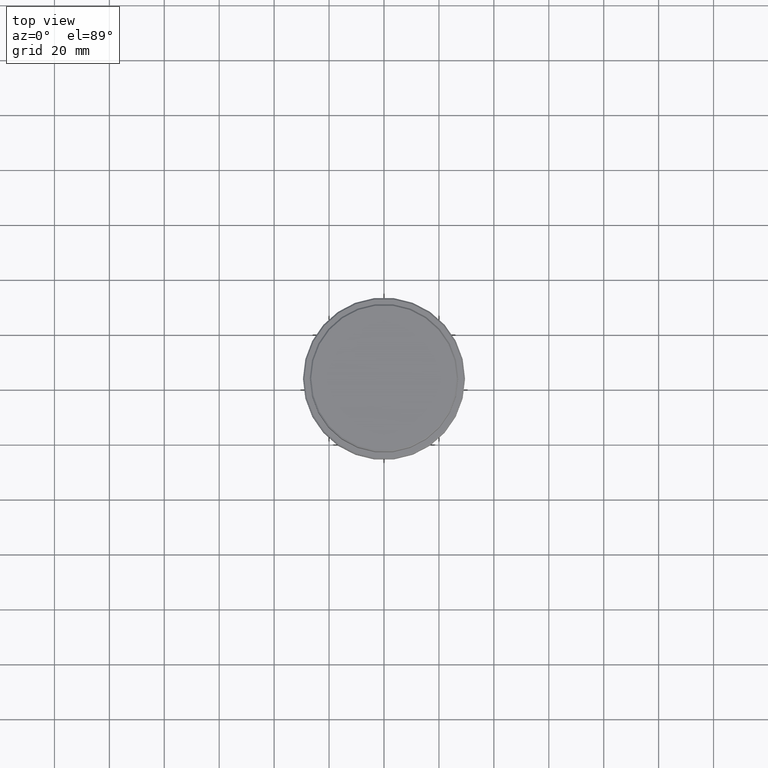
[diagram: clean part render]
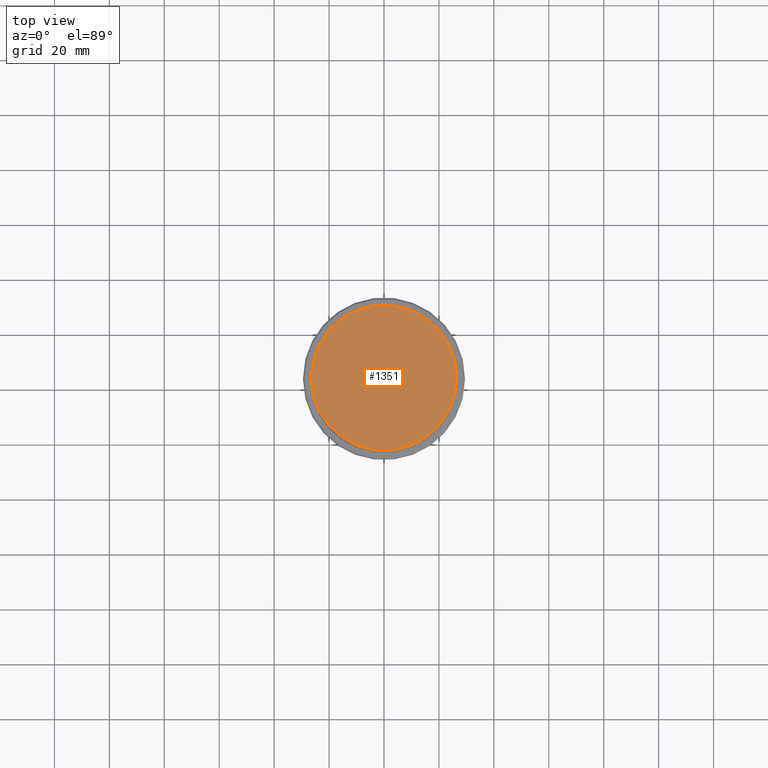
[diagram: same view with one face highlighted and labeled with its STEP entity id]
A machine part, top view. The second image highlights one B-rep face of the part: STEP entity #1351.
In plain terms, the highlighted planar face has unit normal (0, -0, 1).
Its self-contained STEP definition (entity closure, byte-faithful):
#5 = ORIENTED_EDGE ( 'NONE', *, *, #541, .T. ) ;
#54 = DIRECTION ( 'NONE',  ( -0.000000000000000000, -0.000000000000000000, 1.000000000000000000 ) ) ;
#74 = CARTESIAN_POINT ( 'NONE',  ( 26.49999999999999645, 3.275930187719169552E-15, 0.000000000000000000 ) ) ;
#101 = VERTEX_POINT ( 'NONE', #74 ) ;
#123 = EDGE_LOOP ( 'NONE', ( #5, #1190 ) ) ;
#171 = AXIS2_PLACEMENT_3D ( 'NONE', #255, #1353, #372 ) ;
#226 = DIRECTION ( 'NONE',  ( 1.000000000000000000, 0.000000000000000000, 0.000000000000000000 ) ) ;
#255 = CARTESIAN_POINT ( 'NONE',  ( 0.000000000000000000, 0.000000000000000000, 0.000000000000000000 ) ) ;
#305 = AXIS2_PLACEMENT_3D ( 'NONE', #1054, #54, #1367 ) ;
#354 = CIRCLE ( 'NONE', #305, 26.49999999999999645 ) ;
#364 = CARTESIAN_POINT ( 'NONE',  ( 0.000000000000000000, 0.000000000000000000, 0.000000000000000000 ) ) ;
#367 = PLANE ( 'NONE',  #171 ) ;
#372 = DIRECTION ( 'NONE',  ( 1.000000000000000000, 0.000000000000000000, 0.000000000000000000 ) ) ;
#463 = EDGE_CURVE ( 'NONE', #101, #676, #1315, .T. ) ;
#541 = EDGE_CURVE ( 'NONE', #676, #101, #354, .T. ) ;
#676 = VERTEX_POINT ( 'NONE', #1071 ) ;
#700 = AXIS2_PLACEMENT_3D ( 'NONE', #364, #808, #226 ) ;
#808 = DIRECTION ( 'NONE',  ( -0.000000000000000000, -0.000000000000000000, 1.000000000000000000 ) ) ;
#1054 = CARTESIAN_POINT ( 'NONE',  ( 0.000000000000000000, 0.000000000000000000, 0.000000000000000000 ) ) ;
#1071 = CARTESIAN_POINT ( 'NONE',  ( -26.49999999999999645, 0.000000000000000000, 0.000000000000000000 ) ) ;
#1190 = ORIENTED_EDGE ( 'NONE', *, *, #463, .T. ) ;
#1315 = CIRCLE ( 'NONE', #700, 26.49999999999999645 ) ;
#1348 = FACE_OUTER_BOUND ( 'NONE', #123, .T. ) ;
#1351 = ADVANCED_FACE ( 'NONE', ( #1348 ), #367, .T. ) ;
#1353 = DIRECTION ( 'NONE',  ( 0.000000000000000000, -0.000000000000000000, 1.000000000000000000 ) ) ;
#1367 = DIRECTION ( 'NONE',  ( 1.000000000000000000, 0.000000000000000000, 0.000000000000000000 ) ) ;